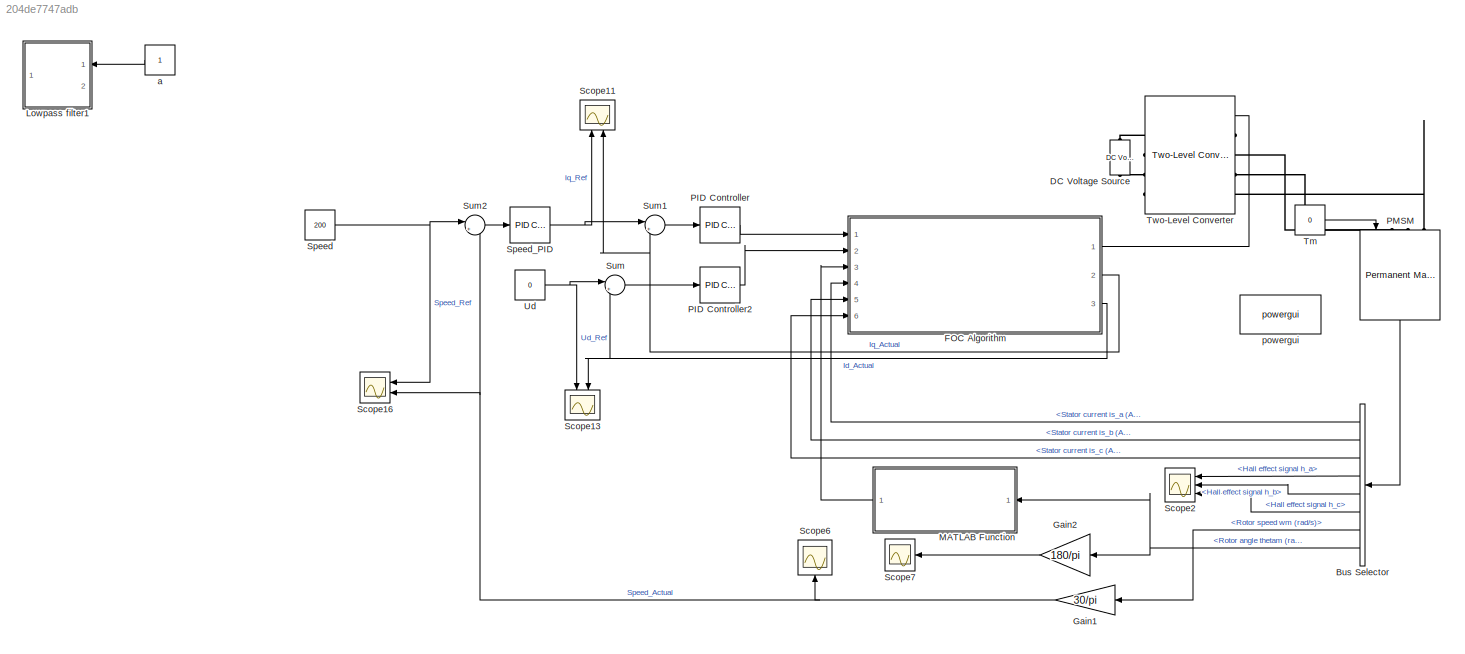
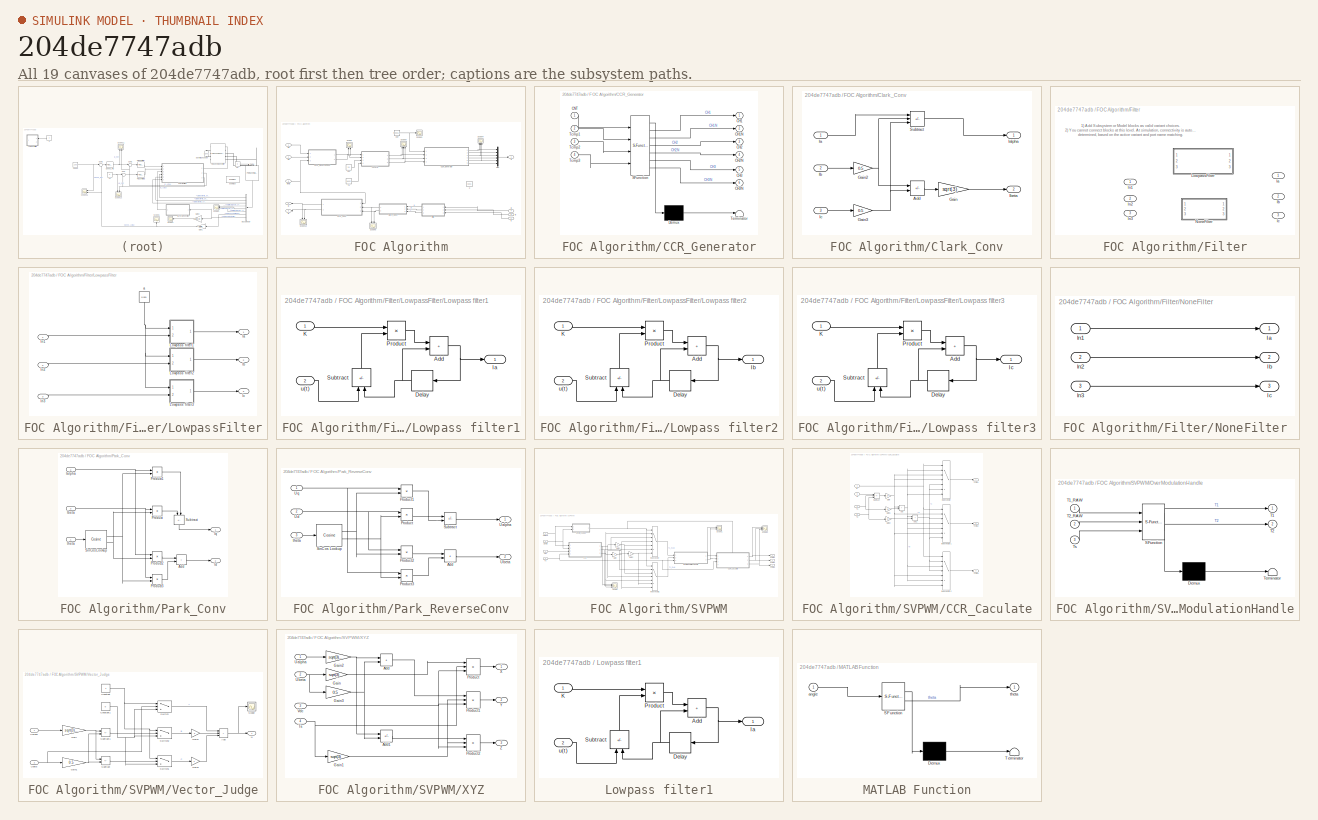
[diagram: thumbnail index - all 19 canvases of the model, root first then tree order]
MODEL slx_204de7747adb
KIND model
CONFIG AbsTol = auto
CONFIG EnableMultiTasking = off
CONFIG FixedStep = 0.00001
CONFIG MaxStep = auto
CONFIG MinStep = auto
CONFIG RelTol = 1e-3
CONFIG SampleTimeConstraint = Unconstrained
CONFIG SolverName = FixedStepDiscrete
CONFIG StartTime = 0.0
CONFIG StopTime = 1
WORKSPACE source: mxarray member
WORKSPACE K = 0
BLOCK [BusSelector] Bus Selector
  NameLocation = top
  OutputSignals = Stator current is_a (A),Stator current is_b (A),Stator current is_c (A),Hall effect signal h_a,Hall effect signal h_b,Hall effect signal h_c,Rotor speed wm (rad/s),Rotor angle thetam (rad)
  Ports = [1, 8]
BLOCK [Reference] DC Voltage Source  REF=spsDCVoltageSourceLib/DC Voltage Source
  NameLocation = top
  Ports = [0, 0, 0, 0, 0, 1, 1]
  SourceBlock = spsDCVoltageSourceLib/DC Voltage Source
  SourceProductBaseCode = PS
  SourceType = DC Voltage Source
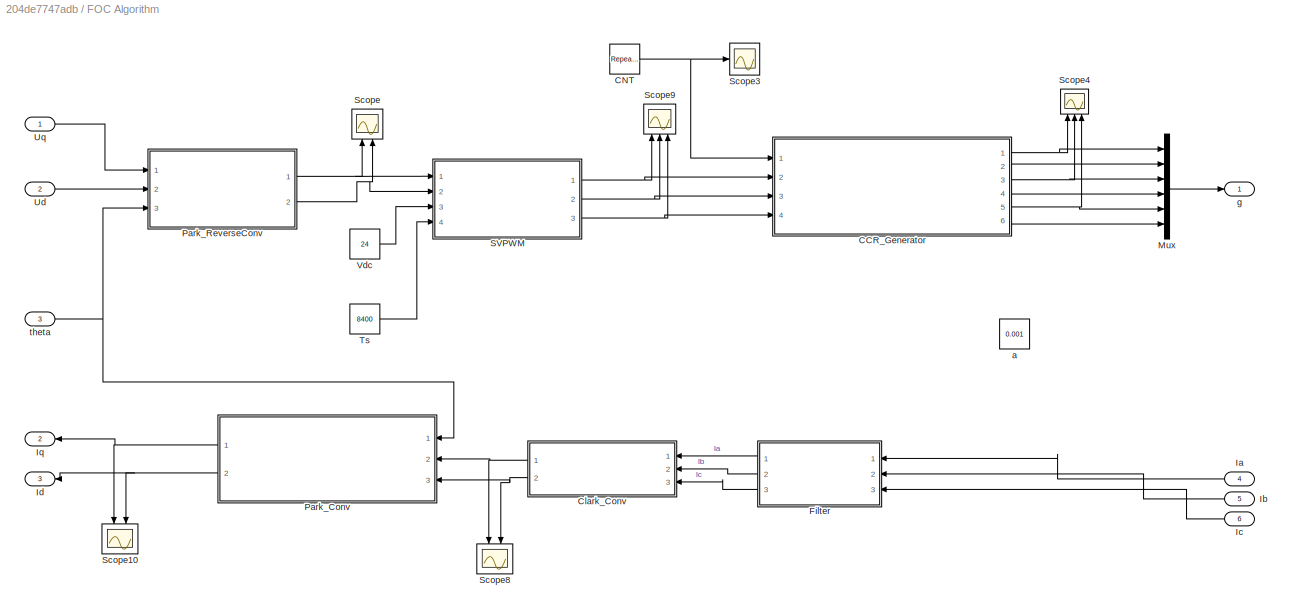
BLOCK [SubSystem] FOC Algorithm
  Ports = [6, 3]
  RequestExecContextInheritance = off
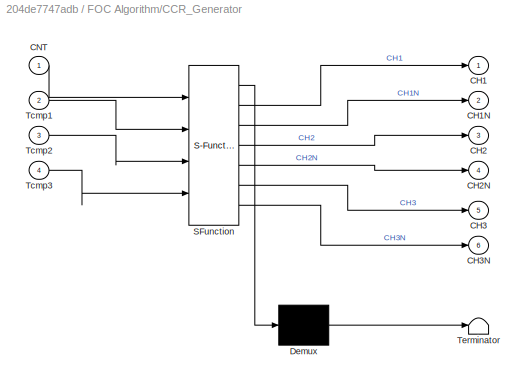
BLOCK [SubSystem] FOC Algorithm/CCR_Generator
  ErrorFcn = Stateflow.Translate.translate
  PermitHierarchicalResolution = ExplicitOnly
  Ports = [4, 6]
  RequestExecContextInheritance = off
  SFBlockType = MATLAB Function
  TreatAsAtomicUnit = on
BLOCK [Demux] FOC Algorithm/CCR_Generator/ Demux 
  Outputs = 1
  Ports = [1, 1]
BLOCK [S-Function] FOC Algorithm/CCR_Generator/ SFunction 
  EnableBusSupport = on
  FunctionName = sf_sfun
  PortCounts = [4 7]
  Ports = [4, 7]
  SFcnIsStateOwnerBlock = off
  SFunctionDeploymentMode = off
  Tag = Stateflow S-Function 1
BLOCK [Terminator] FOC Algorithm/CCR_Generator/ Terminator 
BLOCK [Outport] FOC Algorithm/CCR_Generator/CH1
BLOCK [Outport] FOC Algorithm/CCR_Generator/CH1N
  Port = 2
BLOCK [Outport] FOC Algorithm/CCR_Generator/CH2
  Port = 3
BLOCK [Outport] FOC Algorithm/CCR_Generator/CH2N
  Port = 4
BLOCK [Outport] FOC Algorithm/CCR_Generator/CH3
  Port = 5
BLOCK [Outport] FOC Algorithm/CCR_Generator/CH3N
  Port = 6
BLOCK [Inport] FOC Algorithm/CCR_Generator/CNT
BLOCK [Inport] FOC Algorithm/CCR_Generator/Tcmp1
  Port = 2
BLOCK [Inport] FOC Algorithm/CCR_Generator/Tcmp2
  Port = 3
BLOCK [Inport] FOC Algorithm/CCR_Generator/Tcmp3
  Port = 4
BLOCK [Reference] FOC Algorithm/CNT  REF=simulink/Sources/Repeating
Sequence
  Ports = [0, 1]
  SourceBlock = simulink/Sources/Repeating\nSequence
  SourceProductBaseCode = SL
  SourceType = Repeating table
BLOCK [SubSystem] FOC Algorithm/Clark_Conv
  Ports = [3, 2]
  RequestExecContextInheritance = off
BLOCK [Sum] FOC Algorithm/Clark_Conv/Add
  IconShape = rectangular
  Inputs = +-
  Ports = [2, 1]
BLOCK [Gain] FOC Algorithm/Clark_Conv/Gain
  Gain = sqrt(3)
BLOCK [Gain] FOC Algorithm/Clark_Conv/Gain2
  Gain = 0.5
BLOCK [Gain] FOC Algorithm/Clark_Conv/Gain3
  Gain = 0.5
BLOCK [Inport] FOC Algorithm/Clark_Conv/Ia
BLOCK [Outport] FOC Algorithm/Clark_Conv/Ialpha
BLOCK [Inport] FOC Algorithm/Clark_Conv/Ib
  Port = 2
BLOCK [Outport] FOC Algorithm/Clark_Conv/Ibeta
  Port = 2
BLOCK [Inport] FOC Algorithm/Clark_Conv/Ic
  Port = 3
BLOCK [Sum] FOC Algorithm/Clark_Conv/Subtract
  IconShape = rectangular
  Inputs = +--
  Ports = [3, 1]
BLOCK [SubSystem] FOC Algorithm/Filter
  Ports = [3, 3]
  RequestExecContextInheritance = off
  Variant = on
BLOCK [Outport] FOC Algorithm/Filter/Ia
BLOCK [Outport] FOC Algorithm/Filter/Ib
  Port = 2
BLOCK [Outport] FOC Algorithm/Filter/Ic
  Port = 3
BLOCK [SubSystem] FOC Algorithm/Filter/LowpassFilter
  Ports = [3, 3]
  RequestExecContextInheritance = off
  VariantControl = K==1
BLOCK [Outport] FOC Algorithm/Filter/LowpassFilter/Ia
BLOCK [Outport] FOC Algorithm/Filter/LowpassFilter/Ib
  Port = 2
BLOCK [Outport] FOC Algorithm/Filter/LowpassFilter/Ic
  Port = 3
BLOCK [SubSystem] FOC Algorithm/Filter/LowpassFilter/Lowpass filter1
  Ports = [2, 1]
  RequestExecContextInheritance = off
BLOCK [Sum] FOC Algorithm/Filter/LowpassFilter/Lowpass filter1/Add
  IconShape = rectangular
  Ports = [2, 1]
BLOCK [Delay] FOC Algorithm/Filter/LowpassFilter/Lowpass filter1/Delay
  DelayLength = 1
  InputPortMap = u0
  Ports = [1, 1]
BLOCK [Outport] FOC Algorithm/Filter/LowpassFilter/Lowpass filter1/Ia
BLOCK [Inport] FOC Algorithm/Filter/LowpassFilter/Lowpass filter1/K
BLOCK [Product] FOC Algorithm/Filter/LowpassFilter/Lowpass filter1/Product
  Ports = [2, 1]
BLOCK [Sum] FOC Algorithm/Filter/LowpassFilter/Lowpass filter1/Subtract
  IconShape = rectangular
  Inputs = +-
  NameLocation = left
  Ports = [2, 1]
BLOCK [Inport] FOC Algorithm/Filter/LowpassFilter/Lowpass filter1/u(t)
  Port = 2
BLOCK [SubSystem] FOC Algorithm/Filter/LowpassFilter/Lowpass filter2
  Ports = [2, 1]
  RequestExecContextInheritance = off
BLOCK [Sum] FOC Algorithm/Filter/LowpassFilter/Lowpass filter2/Add
  IconShape = rectangular
  Ports = [2, 1]
BLOCK [Delay] FOC Algorithm/Filter/LowpassFilter/Lowpass filter2/Delay
  DelayLength = 1
  InputPortMap = u0
  Ports = [1, 1]
BLOCK [Outport] FOC Algorithm/Filter/LowpassFilter/Lowpass filter2/Ib
BLOCK [Inport] FOC Algorithm/Filter/LowpassFilter/Lowpass filter2/K
BLOCK [Product] FOC Algorithm/Filter/LowpassFilter/Lowpass filter2/Product
  Ports = [2, 1]
BLOCK [Sum] FOC Algorithm/Filter/LowpassFilter/Lowpass filter2/Subtract
  IconShape = rectangular
  Inputs = +-
  NameLocation = left
  Ports = [2, 1]
BLOCK [Inport] FOC Algorithm/Filter/LowpassFilter/Lowpass filter2/u(t)
  Port = 2
BLOCK [SubSystem] FOC Algorithm/Filter/LowpassFilter/Lowpass filter3
  Ports = [2, 1]
  RequestExecContextInheritance = off
BLOCK [Sum] FOC Algorithm/Filter/LowpassFilter/Lowpass filter3/Add
  IconShape = rectangular
  Ports = [2, 1]
BLOCK [Delay] FOC Algorithm/Filter/LowpassFilter/Lowpass filter3/Delay
  DelayLength = 1
  InputPortMap = u0
  Ports = [1, 1]
BLOCK [Outport] FOC Algorithm/Filter/LowpassFilter/Lowpass filter3/Ic
BLOCK [Inport] FOC Algorithm/Filter/LowpassFilter/Lowpass filter3/K
BLOCK [Product] FOC Algorithm/Filter/LowpassFilter/Lowpass filter3/Product
  Ports = [2, 1]
BLOCK [Sum] FOC Algorithm/Filter/LowpassFilter/Lowpass filter3/Subtract
  IconShape = rectangular
  Inputs = +-
  NameLocation = left
  Ports = [2, 1]
BLOCK [Inport] FOC Algorithm/Filter/LowpassFilter/Lowpass filter3/u(t)
  Port = 2
BLOCK [Constant] FOC Algorithm/Filter/LowpassFilter/a
  NameLocation = left
  Value = 0.001
BLOCK [Inport] FOC Algorithm/Filter/LowpassFilter/ln1
BLOCK [Inport] FOC Algorithm/Filter/LowpassFilter/ln2
  Port = 2
BLOCK [Inport] FOC Algorithm/Filter/LowpassFilter/ln3
  Port = 3
BLOCK [SubSystem] FOC Algorithm/Filter/NoneFilter
  Ports = [3, 3]
  RequestExecContextInheritance = off
  VariantControl = K==0
BLOCK [Outport] FOC Algorithm/Filter/NoneFilter/Ia
BLOCK [Outport] FOC Algorithm/Filter/NoneFilter/Ib
  Port = 2
BLOCK [Outport] FOC Algorithm/Filter/NoneFilter/Ic
  Port = 3
BLOCK [Inport] FOC Algorithm/Filter/NoneFilter/ln1
BLOCK [Inport] FOC Algorithm/Filter/NoneFilter/ln2
  Port = 2
BLOCK [Inport] FOC Algorithm/Filter/NoneFilter/ln3
  Port = 3
BLOCK [Inport] FOC Algorithm/Filter/ln1
BLOCK [Inport] FOC Algorithm/Filter/ln2
  Port = 2
BLOCK [Inport] FOC Algorithm/Filter/ln3
  Port = 3
BLOCK [Inport] FOC Algorithm/Ia
  Port = 4
BLOCK [Inport] FOC Algorithm/Ib
  Port = 5
BLOCK [Inport] FOC Algorithm/Ic
  Port = 6
BLOCK [Outport] FOC Algorithm/Id
  Port = 3
BLOCK [Outport] FOC Algorithm/Iq
  Port = 2
BLOCK [Mux] FOC Algorithm/Mux
  DisplayOption = bar
  Inputs = 6
  Ports = [6, 1]
BLOCK [SubSystem] FOC Algorithm/Park_Conv
  Ports = [3, 2]
  RequestExecContextInheritance = off
BLOCK [Sum] FOC Algorithm/Park_Conv/Add
  IconShape = rectangular
  Ports = [2, 1]
BLOCK [Inport] FOC Algorithm/Park_Conv/Ialpha
  Port = 2
BLOCK [Inport] FOC Algorithm/Park_Conv/Ibeta
  Port = 3
BLOCK [Outport] FOC Algorithm/Park_Conv/Id
  Port = 2
BLOCK [Outport] FOC Algorithm/Park_Conv/Iq
BLOCK [Product] FOC Algorithm/Park_Conv/Product
  Ports = [2, 1]
BLOCK [Product] FOC Algorithm/Park_Conv/Product1
  Ports = [2, 1]
BLOCK [Product] FOC Algorithm/Park_Conv/Product2
  Ports = [2, 1]
BLOCK [Product] FOC Algorithm/Park_Conv/Product3
  Ports = [2, 1]
BLOCK [Reference] FOC Algorithm/Park_Conv/SinCos Lookup  REF=simulink/Lookup
Tables/Cosine
  Ports = [1, 2]
  SourceBlock = simulink/Lookup\nTables/Cosine
  SourceProductBaseCode = SL
  SourceType = Sine and Cosine
BLOCK [Sum] FOC Algorithm/Park_Conv/Subtract
  IconShape = rectangular
  Inputs = +-
  NameLocation = right
  Ports = [2, 1]
BLOCK [Inport] FOC Algorithm/Park_Conv/theta
BLOCK [SubSystem] FOC Algorithm/Park_ReverseConv
  Ports = [3, 2]
  RequestExecContextInheritance = off
BLOCK [Sum] FOC Algorithm/Park_ReverseConv/Add
  IconShape = rectangular
  Ports = [2, 1]
BLOCK [Product] FOC Algorithm/Park_ReverseConv/Product
  Ports = [2, 1]
BLOCK [Product] FOC Algorithm/Park_ReverseConv/Product1
  Ports = [2, 1]
BLOCK [Product] FOC Algorithm/Park_ReverseConv/Product2
  Ports = [2, 1]
BLOCK [Product] FOC Algorithm/Park_ReverseConv/Product3
  Ports = [2, 1]
BLOCK [Reference] FOC Algorithm/Park_ReverseConv/SinCos Lookup  REF=simulink/Lookup
Tables/Cosine
  Ports = [1, 2]
  SourceBlock = simulink/Lookup\nTables/Cosine
  SourceProductBaseCode = SL
  SourceType = Sine and Cosine
BLOCK [Sum] FOC Algorithm/Park_ReverseConv/Subtract
  IconShape = rectangular
  Inputs = +-
  Ports = [2, 1]
BLOCK [Outport] FOC Algorithm/Park_ReverseConv/Ualpha
BLOCK [Outport] FOC Algorithm/Park_ReverseConv/Ubeta
  Port = 2
BLOCK [Inport] FOC Algorithm/Park_ReverseConv/Ud
  Port = 2
BLOCK [Inport] FOC Algorithm/Park_ReverseConv/Uq
BLOCK [Inport] FOC Algorithm/Park_ReverseConv/theta
  Port = 3
BLOCK [SubSystem] FOC Algorithm/SVPWM
  Ports = [4, 3]
  RequestExecContextInheritance = off
BLOCK [SubSystem] FOC Algorithm/SVPWM/CCR_Caculate
  PortSchema = {"entries":[{"content":{"sides":[{"content":{"connectorIds":["In1","In2","In3"]},"type":"ConnectorPlacement.EquallySpacedRectSide","uuid":"41d89106-695f-4d7e-9c99-c52170b99868"},{"content":{"connectorIds":["Out1","Out2","Out3"],"side":"RIGHT"},"type":"ConnectorPlacement.EquallySpacedRectSide","uuid":"0fa1e6b9-7088-4c16-9dd3-c016449aae3e"},{"content":{"connectorIds":["In4"],"side":"TOP"},"type":"Co...<+271ch>
  Ports = [4, 3]
  RequestExecContextInheritance = off
BLOCK [Sum] FOC Algorithm/SVPWM/CCR_Caculate/Add
  IconShape = rectangular
  Ports = [2, 1]
BLOCK [Sum] FOC Algorithm/SVPWM/CCR_Caculate/Add1
  IconShape = rectangular
  Ports = [2, 1]
BLOCK [Gain] FOC Algorithm/SVPWM/CCR_Caculate/Gain
  Gain = 1/4
BLOCK [Gain] FOC Algorithm/SVPWM/CCR_Caculate/Gain1
  Gain = 1/2
BLOCK [Gain] FOC Algorithm/SVPWM/CCR_Caculate/Gain2
  Gain = 1/2
BLOCK [MultiPortSwitch] FOC Algorithm/SVPWM/CCR_Caculate/Index Vector
  InputSameDT = off
  Inputs = 6
  Ports = [7, 1]
  SaturateOnIntegerOverflow = off
BLOCK [MultiPortSwitch] FOC Algorithm/SVPWM/CCR_Caculate/Index Vector1
  InputSameDT = off
  Inputs = 6
  Ports = [7, 1]
  SaturateOnIntegerOverflow = off
BLOCK [MultiPortSwitch] FOC Algorithm/SVPWM/CCR_Caculate/Index Vector2
  InputSameDT = off
  Inputs = 6
  Ports = [7, 1]
  SaturateOnIntegerOverflow = off
BLOCK [Inport] FOC Algorithm/SVPWM/CCR_Caculate/N
  Port = 4
BLOCK [Sum] FOC Algorithm/SVPWM/CCR_Caculate/Subtract
  IconShape = rectangular
  Inputs = +--
  Ports = [3, 1]
BLOCK [Inport] FOC Algorithm/SVPWM/CCR_Caculate/T1
BLOCK [Inport] FOC Algorithm/SVPWM/CCR_Caculate/T2
  Port = 2
BLOCK [Outport] FOC Algorithm/SVPWM/CCR_Caculate/Tcmp1
BLOCK [Outport] FOC Algorithm/SVPWM/CCR_Caculate/Tcmp2
  Port = 2
BLOCK [Outport] FOC Algorithm/SVPWM/CCR_Caculate/Tcmp3
  Port = 3
BLOCK [Inport] FOC Algorithm/SVPWM/CCR_Caculate/Ts
  Port = 3
BLOCK [Gain] FOC Algorithm/SVPWM/Gain
  Gain = -1
BLOCK [Gain] FOC Algorithm/SVPWM/Gain1
  Gain = -1
BLOCK [Gain] FOC Algorithm/SVPWM/Gain2
  Gain = -1
BLOCK [MultiPortSwitch] FOC Algorithm/SVPWM/Index Vector
  InputSameDT = off
  Inputs = 6
  Ports = [7, 1]
  SaturateOnIntegerOverflow = off
BLOCK [MultiPortSwitch] FOC Algorithm/SVPWM/Index Vector1
  InputSameDT = off
  Inputs = 6
  Ports = [7, 1]
  SaturateOnIntegerOverflow = off
BLOCK [SubSystem] FOC Algorithm/SVPWM/OverModulationHandle
  ErrorFcn = Stateflow.Translate.translate
  PermitHierarchicalResolution = ExplicitOnly
  Ports = [3, 2]
  RequestExecContextInheritance = off
  SFBlockType = MATLAB Function
  TreatAsAtomicUnit = on
BLOCK [Demux] FOC Algorithm/SVPWM/OverModulationHandle/ Demux 
  Outputs = 1
  Ports = [1, 1]
BLOCK [S-Function] FOC Algorithm/SVPWM/OverModulationHandle/ SFunction 
  EnableBusSupport = on
  FunctionName = sf_sfun
  PortCounts = [3 3]
  Ports = [3, 3]
  SFcnIsStateOwnerBlock = off
  SFunctionDeploymentMode = off
  Tag = Stateflow S-Function 2
BLOCK [Terminator] FOC Algorithm/SVPWM/OverModulationHandle/ Terminator 
BLOCK [Outport] FOC Algorithm/SVPWM/OverModulationHandle/T1
BLOCK [Inport] FOC Algorithm/SVPWM/OverModulationHandle/T1_RAW
BLOCK [Outport] FOC Algorithm/SVPWM/OverModulationHandle/T2
  Port = 2
BLOCK [Inport] FOC Algorithm/SVPWM/OverModulationHandle/T2_RAW
  Port = 2
BLOCK [Inport] FOC Algorithm/SVPWM/OverModulationHandle/Ts
  Port = 3
BLOCK [Scope] FOC Algorithm/SVPWM/Scope
  Floating = off
  NumInputPorts = 3
  Ports = [3]
  ScopeSpecificationString = Simulink.scopes.TimeScopeBlockCfg('CurrentConfiguration', extmgr.ConfigurationSet(extmgr.Configuration('Core','General UI',true),extmgr.Configuration('Core','Source UI',true),extmgr.Configuration('Sources','WiredSimulink',true,'DataLoggingVariableName','ScopeData2'),extmgr.Configuration('Visuals','Time Domain',true,'SerializedDisplays',{struct('MinYLimReal','-10840.7399','MaxYLimReal','10882.04333...<+1438ch>
BLOCK [Scope] FOC Algorithm/SVPWM/Scope1
  Floating = off
  NumInputPorts = 2
  Ports = [2]
  ScopeSpecificationString = Simulink.scopes.TimeScopeBlockCfg('CurrentConfiguration', extmgr.ConfigurationSet(extmgr.Configuration('Core','General UI',true),extmgr.Configuration('Core','Source UI',true),extmgr.Configuration('Sources','WiredSimulink',true,'DataLoggingVariableName','ScopeData3'),extmgr.Configuration('Visuals','Time Domain',true,'SerializedDisplays',{struct('MinYLimReal','-881.09887','MaxYLimReal','7929.96151',...<+1456ch>
BLOCK [Scope] FOC Algorithm/SVPWM/Scope2
  Floating = off
  NumInputPorts = 3
  Ports = [3]
  ScopeSpecificationString = Simulink.scopes.TimeScopeBlockCfg('CurrentConfiguration', extmgr.ConfigurationSet(extmgr.Configuration('Core','General UI',true),extmgr.Configuration('Core','Source UI',true),extmgr.Configuration('Sources','WiredSimulink',true,'DataLoggingVariableName','ScopeData4'),extmgr.Configuration('Visuals','Time Domain',true,'SerializedDisplays',{struct('MinYLimReal','205.56943','MaxYLimReal','3994.43057','...<+1456ch>
BLOCK [Outport] FOC Algorithm/SVPWM/Tcmp1
BLOCK [Outport] FOC Algorithm/SVPWM/Tcmp2
  Port = 2
BLOCK [Outport] FOC Algorithm/SVPWM/Tcmp3
  Port = 3
BLOCK [Inport] FOC Algorithm/SVPWM/Ts
  Port = 4
BLOCK [Inport] FOC Algorithm/SVPWM/Ualpha
BLOCK [Inport] FOC Algorithm/SVPWM/Ubeta
  Port = 2
BLOCK [Inport] FOC Algorithm/SVPWM/Vdc
  Port = 3
BLOCK [SubSystem] FOC Algorithm/SVPWM/Vector_Judge
  Ports = [2, 1]
  RequestExecContextInheritance = off
BLOCK [Sum] FOC Algorithm/SVPWM/Vector_Judge/Add
  IconShape = rectangular
  Inputs = +++
  Ports = [3, 1]
BLOCK [Constant] FOC Algorithm/SVPWM/Vector_Judge/Constant
BLOCK [Constant] FOC Algorithm/SVPWM/Vector_Judge/Constant1
  Value = 0
BLOCK [Gain] FOC Algorithm/SVPWM/Vector_Judge/Gain
  Gain = sqrt(3)/2
BLOCK [Gain] FOC Algorithm/SVPWM/Vector_Judge/Gain1
  Gain = 0.5
BLOCK [Gain] FOC Algorithm/SVPWM/Vector_Judge/Gain2
  Gain = 2
BLOCK [Gain] FOC Algorithm/SVPWM/Vector_Judge/Gain3
  Gain = 4
BLOCK [Outport] FOC Algorithm/SVPWM/Vector_Judge/N
BLOCK [Scope] FOC Algorithm/SVPWM/Vector_Judge/Scope
  Floating = off
  NumInputPorts = 1
  Ports = [1]
  ScopeSpecificationString = Simulink.scopes.TimeScopeBlockCfg('CurrentConfiguration', extmgr.ConfigurationSet(extmgr.Configuration('Core','General UI',true),extmgr.Configuration('Core','Source UI',true),extmgr.Configuration('Sources','WiredSimulink',true,'DataLoggingVariableName','ScopeData1'),extmgr.Configuration('Visuals','Time Domain',true,'SerializedDisplays',{struct('MinYLimReal','0.375','MaxYLimReal','6.625','YLabelRea...<+1371ch>
BLOCK [Sum] FOC Algorithm/SVPWM/Vector_Judge/Subtract
  IconShape = rectangular
  Inputs = --
  Ports = [2, 1]
BLOCK [Sum] FOC Algorithm/SVPWM/Vector_Judge/Subtract1
  IconShape = rectangular
  Inputs = +-
  Ports = [2, 1]
BLOCK [Switch] FOC Algorithm/SVPWM/Vector_Judge/Switch
  Criteria = u2 > Threshold
  InputSameDT = off
  SaturateOnIntegerOverflow = off
BLOCK [Switch] FOC Algorithm/SVPWM/Vector_Judge/Switch1
  Criteria = u2 > Threshold
  InputSameDT = off
  SaturateOnIntegerOverflow = off
BLOCK [Switch] FOC Algorithm/SVPWM/Vector_Judge/Switch2
  Criteria = u2 > Threshold
  InputSameDT = off
  SaturateOnIntegerOverflow = off
BLOCK [Inport] FOC Algorithm/SVPWM/Vector_Judge/Ualpha
BLOCK [Inport] FOC Algorithm/SVPWM/Vector_Judge/Ubeta
  Port = 2
BLOCK [SubSystem] FOC Algorithm/SVPWM/XYZ
  Ports = [4, 3]
  RequestExecContextInheritance = off
BLOCK [Sum] FOC Algorithm/SVPWM/XYZ/Add
  IconShape = rectangular
  Ports = [2, 1]
BLOCK [Sum] FOC Algorithm/SVPWM/XYZ/Add1
  IconShape = rectangular
  Inputs = -+
  Ports = [2, 1]
BLOCK [Gain] FOC Algorithm/SVPWM/XYZ/Gain
  Gain = sqrt(3)
BLOCK [Gain] FOC Algorithm/SVPWM/XYZ/Gain1
  Gain = sqrt(3)
BLOCK [Gain] FOC Algorithm/SVPWM/XYZ/Gain2
  Gain = sqrt(3)/2
BLOCK [Gain] FOC Algorithm/SVPWM/XYZ/Gain3
  Gain = 0.5
BLOCK [Product] FOC Algorithm/SVPWM/XYZ/Product
  Inputs = **/
  Ports = [3, 1]
BLOCK [Product] FOC Algorithm/SVPWM/XYZ/Product1
  Inputs = **/
  Ports = [3, 1]
BLOCK [Product] FOC Algorithm/SVPWM/XYZ/Product2
  Inputs = **/
  Ports = [3, 1]
BLOCK [Inport] FOC Algorithm/SVPWM/XYZ/Ts
  Port = 4
BLOCK [Inport] FOC Algorithm/SVPWM/XYZ/Ualpha
BLOCK [Inport] FOC Algorithm/SVPWM/XYZ/Ubeta
  Port = 2
BLOCK [Inport] FOC Algorithm/SVPWM/XYZ/Vdc
  Port = 3
BLOCK [Outport] FOC Algorithm/SVPWM/XYZ/X
BLOCK [Outport] FOC Algorithm/SVPWM/XYZ/Y
  Port = 2
BLOCK [Outport] FOC Algorithm/SVPWM/XYZ/Z
  Port = 3
BLOCK [Scope] FOC Algorithm/Scope
  Floating = off
  NameLocation = right
  NumInputPorts = 2
  Ports = [2]
  ScopeSpecificationString = Simulink.scopes.TimeScopeBlockCfg('CurrentConfiguration', extmgr.ConfigurationSet(extmgr.Configuration('Core','General UI',true,'FigureColor',[1 1 1]),extmgr.Configuration('Core','Source UI',true),extmgr.Configuration('Sources','WiredSimulink',true),extmgr.Configuration('Visuals','Time Domain',true,'SerializedDisplays',{struct('MinYLimReal','-12.5','MaxYLimReal','12.5','YLabelReal','电压(V)','MinYLi...<+1706ch>
BLOCK [Scope] FOC Algorithm/Scope10
  Floating = off
  NameLocation = right
  NumInputPorts = 2
  Ports = [2]
  ScopeSpecificationString = Simulink.scopes.TimeScopeBlockCfg('CurrentConfiguration', extmgr.ConfigurationSet(extmgr.Configuration('Core','General UI',true,'FigureColor',[1 1 1]),extmgr.Configuration('Core','Source UI',true),extmgr.Configuration('Sources','WiredSimulink',true,'DataLoggingVariableName','ScopeData1'),extmgr.Configuration('Visuals','Time Domain',true,'SerializedDisplays',{struct('MinYLimReal','-11.40983','MaxYL...<+1679ch>
BLOCK [Scope] FOC Algorithm/Scope3
  Commented = on
  Floating = off
  NumInputPorts = 1
  Ports = [1]
  ScopeSpecificationString = Simulink.scopes.TimeScopeBlockCfg('CurrentConfiguration', extmgr.ConfigurationSet(extmgr.Configuration('Core','General UI',true),extmgr.Configuration('Core','Source UI',true),extmgr.Configuration('Sources','WiredSimulink',true,'DataLoggingVariableName','ScopeData1'),extmgr.Configuration('Visuals','Time Domain',true,'SerializedDisplays',{struct('MinYLimReal','-525.00000','MaxYLimReal','4725.00000',...<+1453ch>
BLOCK [Scope] FOC Algorithm/Scope4
  Commented = on
  Floating = off
  NameLocation = right
  NumInputPorts = 3
  Ports = [3]
  ScopeSpecificationString = Simulink.scopes.TimeScopeBlockCfg('CurrentConfiguration', extmgr.ConfigurationSet(extmgr.Configuration('Core','General UI',true,'FigureColor',[1 1 1]),extmgr.Configuration('Core','Source UI',true),extmgr.Configuration('Sources','WiredSimulink',true,'DataLoggingVariableName','ScopeData2'),extmgr.Configuration('Visuals','Time Domain',true,'SerializedDisplays',{struct('MinYLimReal','-0.125','MaxYLimR...<+3275ch>
BLOCK [Scope] FOC Algorithm/Scope8
  Floating = off
  NameLocation = right
  NumInputPorts = 2
  Ports = [2]
  ScopeSpecificationString = Simulink.scopes.TimeScopeBlockCfg('CurrentConfiguration', extmgr.ConfigurationSet(extmgr.Configuration('Core','General UI',true,'FigureColor',[1 1 1]),extmgr.Configuration('Core','Source UI',true),extmgr.Configuration('Sources','WiredSimulink',true,'DataLoggingVariableName','ScopeData7'),extmgr.Configuration('Visuals','Time Domain',true,'SerializedDisplays',{struct('MinYLimReal','-23.13274','MaxYL...<+1782ch>
BLOCK [Scope] FOC Algorithm/Scope9
  Floating = off
  NameLocation = right
  NumInputPorts = 3
  Ports = [3]
  ScopeSpecificationString = Simulink.scopes.TimeScopeBlockCfg('CurrentConfiguration', extmgr.ConfigurationSet(extmgr.Configuration('Core','General UI',true,'FigureColor',[1 1 1]),extmgr.Configuration('Core','Source UI',true),extmgr.Configuration('Sources','WiredSimulink',true,'DataLoggingVariableName','ScopeData1'),extmgr.Configuration('Visuals','Time Domain',true,'SerializedDisplays',{struct('MinYLimReal','205.56943','MaxYL...<+1800ch>
BLOCK [Constant] FOC Algorithm/Ts
  Value = 8400
BLOCK [Inport] FOC Algorithm/Ud
  Port = 2
BLOCK [Inport] FOC Algorithm/Uq
BLOCK [Constant] FOC Algorithm/Vdc
  Value = 24
BLOCK [Constant] FOC Algorithm/a
  Value = 0.001
BLOCK [Outport] FOC Algorithm/g
BLOCK [Inport] FOC Algorithm/theta
  Port = 3
BLOCK [Gain] Gain1
  Gain = 30/pi
BLOCK [Gain] Gain2
  Gain = 180/pi
  NameLocation = top
BLOCK [SubSystem] Lowpass filter1
  Commented = on
  Ports = [2, 1]
  RequestExecContextInheritance = off
BLOCK [Sum] Lowpass filter1/Add
  IconShape = rectangular
  Ports = [2, 1]
BLOCK [Delay] Lowpass filter1/Delay
  DelayLength = 1
  InputPortMap = u0
  Ports = [1, 1]
BLOCK [Outport] Lowpass filter1/Ia
BLOCK [Inport] Lowpass filter1/K
BLOCK [Product] Lowpass filter1/Product
  Ports = [2, 1]
BLOCK [Sum] Lowpass filter1/Subtract
  IconShape = rectangular
  Inputs = +-
  NameLocation = left
  Ports = [2, 1]
BLOCK [Inport] Lowpass filter1/u(t)
  Port = 2
BLOCK [SubSystem] MATLAB Function
  ErrorFcn = Stateflow.Translate.translate
  PermitHierarchicalResolution = ExplicitOnly
  Ports = [1, 1]
  RequestExecContextInheritance = off
  SFBlockType = MATLAB Function
  TreatAsAtomicUnit = on
BLOCK [Demux] MATLAB Function/ Demux 
  Outputs = 1
  Ports = [1, 1]
BLOCK [S-Function] MATLAB Function/ SFunction 
  EnableBusSupport = on
  FunctionName = sf_sfun
  PortCounts = [1 2]
  Ports = [1, 2]
  SFcnIsStateOwnerBlock = off
  SFunctionDeploymentMode = off
  Tag = Stateflow S-Function 4
BLOCK [Terminator] MATLAB Function/ Terminator 
BLOCK [Inport] MATLAB Function/angle
BLOCK [Outport] MATLAB Function/theta
BLOCK [Reference] PID Controller  REF=slpidlib/PID Controller
  Ports = [1, 1]
  SourceBlock = slpidlib/PID Controller
  SourceProductBaseCode = SL
  SourceType = PID 1dof
BLOCK [Reference] PID Controller2  REF=slpidlib/PID Controller
  Ports = [1, 1]
  SourceBlock = slpidlib/PID Controller
  SourceProductBaseCode = SL
  SourceType = PID 1dof
BLOCK [Reference] PMSM  REF=spsPermanentMagnetSynchronousMachineLib/Permanent Magnet
Synchronous Machine
  NameLocation = left
  Ports = [1, 1, 0, 0, 0, 3]
  SourceBlock = spsPermanentMagnetSynchronousMachineLib/Permanent Magnet\nSynchronous Machine
  SourceProductBaseCode = PS
  SourceType = Permanent Magnet Synchronous Machine
BLOCK [Scope] Scope11
  Floating = off
  NameLocation = right
  NumInputPorts = 2
  Ports = [2]
  ScopeSpecificationString = Simulink.scopes.TimeScopeBlockCfg('CurrentConfiguration', extmgr.ConfigurationSet(extmgr.Configuration('Core','General UI',true),extmgr.Configuration('Core','Source UI',true),extmgr.Configuration('Sources','WiredSimulink',true,'DataLoggingVariableName','ScopeData2'),extmgr.Configuration('Visuals','Time Domain',true,'SerializedDisplays',{struct('MinYLimReal','-50','MaxYLimReal','174.18094','YLabelR...<+1443ch>
BLOCK [Scope] Scope13
  Floating = off
  NameLocation = left
  NumInputPorts = 2
  Ports = [2]
  ScopeSpecificationString = Simulink.scopes.TimeScopeBlockCfg('CurrentConfiguration', extmgr.ConfigurationSet(extmgr.Configuration('Core','General UI',true),extmgr.Configuration('Core','Source UI',true),extmgr.Configuration('Sources','WiredSimulink',true,'DataLoggingVariableName','ScopeData4'),extmgr.Configuration('Visuals','Time Domain',true,'SerializedDisplays',{struct('MinYLimReal','-82.31243','MaxYLimReal','47.11054','YL...<+1451ch>
BLOCK [Scope] Scope16
  Floating = off
  NameLocation = top
  NumInputPorts = 2
  Ports = [2]
  ScopeSpecificationString = Simulink.scopes.TimeScopeBlockCfg('CurrentConfiguration', extmgr.ConfigurationSet(extmgr.Configuration('Core','General UI',true,'FigureColor',[1 1 1]),extmgr.Configuration('Core','Source UI',true),extmgr.Configuration('Sources','WiredSimulink',true,'DataLoggingVariableName','ScopeData7'),extmgr.Configuration('Visuals','Time Domain',true,'SerializedDisplays',{struct('MinYLimReal','-36.44311','MaxYL...<+1822ch>
BLOCK [Scope] Scope2
  Commented = on
  Floating = off
  NumInputPorts = 3
  Ports = [3]
  ScopeSpecificationString = Simulink.scopes.TimeScopeBlockCfg('CurrentConfiguration', extmgr.ConfigurationSet(extmgr.Configuration('Core','General UI',true),extmgr.Configuration('Core','Source UI',true),extmgr.Configuration('Sources','WiredSimulink',true,'DataLoggingVariableName','ScopeData3'),extmgr.Configuration('Visuals','Time Domain',true,'SerializedDisplays',{struct('MinYLimReal','-0.125','MaxYLimReal','1.125','YLabelRe...<+2802ch>
BLOCK [Scope] Scope6
  Floating = off
  NameLocation = left
  NumInputPorts = 1
  Ports = [1]
  ScopeSpecificationString = Simulink.scopes.TimeScopeBlockCfg('CurrentConfiguration', extmgr.ConfigurationSet(extmgr.Configuration('Core','General UI',true,'FigureColor',[1 1 1]),extmgr.Configuration('Core','Source UI',true),extmgr.Configuration('Sources','WiredSimulink',true,'DataLoggingVariableName','ScopeData5'),extmgr.Configuration('Visuals','Time Domain',true,'SerializedDisplays',{struct('MinYLimReal','-27.77131','MaxYL...<+1917ch>
BLOCK [Scope] Scope7
  Floating = off
  NameLocation = top
  NumInputPorts = 1
  Ports = [1]
  ScopeSpecificationString = Simulink.scopes.TimeScopeBlockCfg('CurrentConfiguration', extmgr.ConfigurationSet(extmgr.Configuration('Core','General UI',true),extmgr.Configuration('Core','Source UI',true),extmgr.Configuration('Sources','WiredSimulink',true,'DataLoggingVariableName','ScopeData6'),extmgr.Configuration('Visuals','Time Domain',true,'SerializedDisplays',{struct('MinYLimReal','-148.35154','MaxYLimReal','1335.16386',...<+1455ch>
BLOCK [Constant] Speed
  Value = 200
BLOCK [Reference] Speed_PID  REF=slpidlib/PID Controller
  Ports = [1, 1]
  SourceBlock = slpidlib/PID Controller
  SourceProductBaseCode = SL
  SourceType = PID 1dof
BLOCK [Sum] Sum
  Inputs = |+-
  Ports = [2, 1]
BLOCK [Sum] Sum1
  Inputs = |+-
  Ports = [2, 1]
BLOCK [Sum] Sum2
  Inputs = |+-
  Ports = [2, 1]
BLOCK [Constant] Tm
  Value = 0
BLOCK [Reference] Two-Level Converter  REF=spsTwoLevelConverterLib/Two-Level Converter
  NameLocation = top
  Ports = [2, 0, 0, 0, 0, 3, 2]
  SourceBlock = spsTwoLevelConverterLib/Two-Level Converter
  SourceProductBaseCode = PS
  SourceType = Two-Level Converter
BLOCK [Constant] Ud
  Value = 0
BLOCK [Constant] a
  Commented = on
BLOCK [Reference] powergui  REF=spspowerguiLib/powergui
  Ports = []
  Priority = 1
  SourceBlock = spspowerguiLib/powergui
  SourceProductBaseCode = PS
  SourceType = PSB option menu block
ANNOTATION FOC Algorithm/Filter: 1) Add Subsystem or Model blocks as valid variant choices. 2) You cannot connect blocks at this level. At simulation, connectivity is automatically determined, based on the active variant and port name matching.
LINE Bus Selector:1 -> FOC Algorithm:4
LINE Bus Selector:2 -> FOC Algorithm:5
LINE Bus Selector:3 -> FOC Algorithm:6
LINE Bus Selector:4 -> Scope2:1
LINE Bus Selector:5 -> Scope2:2
LINE Bus Selector:6 -> Scope2:3
LINE Bus Selector:7 -> Gain1:1
NET Bus Selector:8 -> Gain2:1, MATLAB Function:1
NET FOC Algorithm/CCR_Generator:1 -> FOC Algorithm/Mux:1, FOC Algorithm/Scope4:1
LINE FOC Algorithm/CCR_Generator:2 -> FOC Algorithm/Mux:2
NET FOC Algorithm/CCR_Generator:3 -> FOC Algorithm/Mux:3, FOC Algorithm/Scope4:2
LINE FOC Algorithm/CCR_Generator:4 -> FOC Algorithm/Mux:4
NET FOC Algorithm/CCR_Generator:5 -> FOC Algorithm/Mux:5, FOC Algorithm/Scope4:3
LINE FOC Algorithm/CCR_Generator:6 -> FOC Algorithm/Mux:6
NET FOC Algorithm/CNT:1 -> FOC Algorithm/CCR_Generator:1, FOC Algorithm/Scope3:1
LINE FOC Algorithm/Clark_Conv/Add:1 -> FOC Algorithm/Clark_Conv/Gain:1
NET FOC Algorithm/Clark_Conv/Gain2:1 -> FOC Algorithm/Clark_Conv/Add:1, FOC Algorithm/Clark_Conv/Subtract:2
NET FOC Algorithm/Clark_Conv/Gain3:1 -> FOC Algorithm/Clark_Conv/Add:2, FOC Algorithm/Clark_Conv/Subtract:3
LINE FOC Algorithm/Clark_Conv/Gain:1 -> FOC Algorithm/Clark_Conv/Ibeta:1
LINE FOC Algorithm/Clark_Conv/Ia:1 -> FOC Algorithm/Clark_Conv/Subtract:1
LINE FOC Algorithm/Clark_Conv/Ib:1 -> FOC Algorithm/Clark_Conv/Gain2:1
LINE FOC Algorithm/Clark_Conv/Ic:1 -> FOC Algorithm/Clark_Conv/Gain3:1
LINE FOC Algorithm/Clark_Conv/Subtract:1 -> FOC Algorithm/Clark_Conv/Ialpha:1
NET FOC Algorithm/Clark_Conv:1 -> FOC Algorithm/Park_Conv:2, FOC Algorithm/Scope8:1
NET FOC Algorithm/Clark_Conv:2 -> FOC Algorithm/Park_Conv:3, FOC Algorithm/Scope8:2
NET FOC Algorithm/Filter/LowpassFilter/Lowpass filter1/Add:1 -> FOC Algorithm/Filter/LowpassFilter/Lowpass filter1/Delay:1, FOC Algorithm/Filter/LowpassFilter/Lowpass filter1/Ia:1
NET FOC Algorithm/Filter/LowpassFilter/Lowpass filter1/Delay:1 -> FOC Algorithm/Filter/LowpassFilter/Lowpass filter1/Add:2, FOC Algorithm/Filter/LowpassFilter/Lowpass filter1/Subtract:2
LINE FOC Algorithm/Filter/LowpassFilter/Lowpass filter1/K:1 -> FOC Algorithm/Filter/LowpassFilter/Lowpass filter1/Product:1
LINE FOC Algorithm/Filter/LowpassFilter/Lowpass filter1/Product:1 -> FOC Algorithm/Filter/LowpassFilter/Lowpass filter1/Add:1
LINE FOC Algorithm/Filter/LowpassFilter/Lowpass filter1/Subtract:1 -> FOC Algorithm/Filter/LowpassFilter/Lowpass filter1/Product:2
LINE FOC Algorithm/Filter/LowpassFilter/Lowpass filter1/u(t):1 -> FOC Algorithm/Filter/LowpassFilter/Lowpass filter1/Subtract:1
LINE FOC Algorithm/Filter/LowpassFilter/Lowpass filter1:1 -> FOC Algorithm/Filter/LowpassFilter/Ia:1
NET FOC Algorithm/Filter/LowpassFilter/Lowpass filter2/Add:1 -> FOC Algorithm/Filter/LowpassFilter/Lowpass filter2/Delay:1, FOC Algorithm/Filter/LowpassFilter/Lowpass filter2/Ib:1
NET FOC Algorithm/Filter/LowpassFilter/Lowpass filter2/Delay:1 -> FOC Algorithm/Filter/LowpassFilter/Lowpass filter2/Add:2, FOC Algorithm/Filter/LowpassFilter/Lowpass filter2/Subtract:2
LINE FOC Algorithm/Filter/LowpassFilter/Lowpass filter2/K:1 -> FOC Algorithm/Filter/LowpassFilter/Lowpass filter2/Product:1
LINE FOC Algorithm/Filter/LowpassFilter/Lowpass filter2/Product:1 -> FOC Algorithm/Filter/LowpassFilter/Lowpass filter2/Add:1
LINE FOC Algorithm/Filter/LowpassFilter/Lowpass filter2/Subtract:1 -> FOC Algorithm/Filter/LowpassFilter/Lowpass filter2/Product:2
LINE FOC Algorithm/Filter/LowpassFilter/Lowpass filter2/u(t):1 -> FOC Algorithm/Filter/LowpassFilter/Lowpass filter2/Subtract:1
LINE FOC Algorithm/Filter/LowpassFilter/Lowpass filter2:1 -> FOC Algorithm/Filter/LowpassFilter/Ib:1
NET FOC Algorithm/Filter/LowpassFilter/Lowpass filter3/Add:1 -> FOC Algorithm/Filter/LowpassFilter/Lowpass filter3/Delay:1, FOC Algorithm/Filter/LowpassFilter/Lowpass filter3/Ic:1
NET FOC Algorithm/Filter/LowpassFilter/Lowpass filter3/Delay:1 -> FOC Algorithm/Filter/LowpassFilter/Lowpass filter3/Add:2, FOC Algorithm/Filter/LowpassFilter/Lowpass filter3/Subtract:2
LINE FOC Algorithm/Filter/LowpassFilter/Lowpass filter3/K:1 -> FOC Algorithm/Filter/LowpassFilter/Lowpass filter3/Product:1
LINE FOC Algorithm/Filter/LowpassFilter/Lowpass filter3/Product:1 -> FOC Algorithm/Filter/LowpassFilter/Lowpass filter3/Add:1
LINE FOC Algorithm/Filter/LowpassFilter/Lowpass filter3/Subtract:1 -> FOC Algorithm/Filter/LowpassFilter/Lowpass filter3/Product:2
LINE FOC Algorithm/Filter/LowpassFilter/Lowpass filter3/u(t):1 -> FOC Algorithm/Filter/LowpassFilter/Lowpass filter3/Subtract:1
LINE FOC Algorithm/Filter/LowpassFilter/Lowpass filter3:1 -> FOC Algorithm/Filter/LowpassFilter/Ic:1
NET FOC Algorithm/Filter/LowpassFilter/a:1 -> FOC Algorithm/Filter/LowpassFilter/Lowpass filter1:1, FOC Algorithm/Filter/LowpassFilter/Lowpass filter2:1, FOC Algorithm/Filter/LowpassFilter/Lowpass filter3:1
LINE FOC Algorithm/Filter/LowpassFilter/ln1:1 -> FOC Algorithm/Filter/LowpassFilter/Lowpass filter1:2
LINE FOC Algorithm/Filter/LowpassFilter/ln2:1 -> FOC Algorithm/Filter/LowpassFilter/Lowpass filter2:2
LINE FOC Algorithm/Filter/LowpassFilter/ln3:1 -> FOC Algorithm/Filter/LowpassFilter/Lowpass filter3:2
LINE FOC Algorithm/Filter/NoneFilter/ln1:1 -> FOC Algorithm/Filter/NoneFilter/Ia:1
LINE FOC Algorithm/Filter/NoneFilter/ln2:1 -> FOC Algorithm/Filter/NoneFilter/Ib:1
LINE FOC Algorithm/Filter/NoneFilter/ln3:1 -> FOC Algorithm/Filter/NoneFilter/Ic:1
LINE FOC Algorithm/Filter:1 -> FOC Algorithm/Clark_Conv:1
LINE FOC Algorithm/Filter:2 -> FOC Algorithm/Clark_Conv:2
LINE FOC Algorithm/Filter:3 -> FOC Algorithm/Clark_Conv:3
LINE FOC Algorithm/Ia:1 -> FOC Algorithm/Filter:1
LINE FOC Algorithm/Ib:1 -> FOC Algorithm/Filter:2
LINE FOC Algorithm/Ic:1 -> FOC Algorithm/Filter:3
LINE FOC Algorithm/Mux:1 -> FOC Algorithm/g:1
LINE FOC Algorithm/Park_Conv/Add:1 -> FOC Algorithm/Park_Conv/Id:1
NET FOC Algorithm/Park_Conv/Ialpha:1 -> FOC Algorithm/Park_Conv/Product1:1, FOC Algorithm/Park_Conv/Product2:1
NET FOC Algorithm/Park_Conv/Ibeta:1 -> FOC Algorithm/Park_Conv/Product3:1, FOC Algorithm/Park_Conv/Product:1
LINE FOC Algorithm/Park_Conv/Product1:1 -> FOC Algorithm/Park_Conv/Subtract:2
LINE FOC Algorithm/Park_Conv/Product2:1 -> FOC Algorithm/Park_Conv/Add:1
LINE FOC Algorithm/Park_Conv/Product3:1 -> FOC Algorithm/Park_Conv/Add:2
LINE FOC Algorithm/Park_Conv/Product:1 -> FOC Algorithm/Park_Conv/Subtract:1
NET FOC Algorithm/Park_Conv/SinCos Lookup:1 -> FOC Algorithm/Park_Conv/Product1:2, FOC Algorithm/Park_Conv/Product3:2
NET FOC Algorithm/Park_Conv/SinCos Lookup:2 -> FOC Algorithm/Park_Conv/Product2:2, FOC Algorithm/Park_Conv/Product:2
LINE FOC Algorithm/Park_Conv/Subtract:1 -> FOC Algorithm/Park_Conv/Iq:1
LINE FOC Algorithm/Park_Conv/theta:1 -> FOC Algorithm/Park_Conv/SinCos Lookup:1
NET FOC Algorithm/Park_Conv:1 -> FOC Algorithm/Iq:1, FOC Algorithm/Scope10:1
NET FOC Algorithm/Park_Conv:2 -> FOC Algorithm/Id:1, FOC Algorithm/Scope10:2
LINE FOC Algorithm/Park_ReverseConv/Add:1 -> FOC Algorithm/Park_ReverseConv/Ubeta:1
LINE FOC Algorithm/Park_ReverseConv/Product1:1 -> FOC Algorithm/Park_ReverseConv/Subtract:2
LINE FOC Algorithm/Park_ReverseConv/Product2:1 -> FOC Algorithm/Park_ReverseConv/Add:1
LINE FOC Algorithm/Park_ReverseConv/Product3:1 -> FOC Algorithm/Park_ReverseConv/Add:2
LINE FOC Algorithm/Park_ReverseConv/Product:1 -> FOC Algorithm/Park_ReverseConv/Subtract:1
NET FOC Algorithm/Park_ReverseConv/SinCos Lookup:1 -> FOC Algorithm/Park_ReverseConv/Product1:2, FOC Algorithm/Park_ReverseConv/Product2:2
NET FOC Algorithm/Park_ReverseConv/SinCos Lookup:2 -> FOC Algorithm/Park_ReverseConv/Product3:2, FOC Algorithm/Park_ReverseConv/Product:2
LINE FOC Algorithm/Park_ReverseConv/Subtract:1 -> FOC Algorithm/Park_ReverseConv/Ualpha:1
NET FOC Algorithm/Park_ReverseConv/Ud:1 -> FOC Algorithm/Park_ReverseConv/Product2:1, FOC Algorithm/Park_ReverseConv/Product:1
NET FOC Algorithm/Park_ReverseConv/Uq:1 -> FOC Algorithm/Park_ReverseConv/Product1:1, FOC Algorithm/Park_ReverseConv/Product3:1
LINE FOC Algorithm/Park_ReverseConv/theta:1 -> FOC Algorithm/Park_ReverseConv/SinCos Lookup:1
NET FOC Algorithm/Park_ReverseConv:1 -> FOC Algorithm/SVPWM:1, FOC Algorithm/Scope:1
NET FOC Algorithm/Park_ReverseConv:2 -> FOC Algorithm/SVPWM:2, FOC Algorithm/Scope:2
NET FOC Algorithm/SVPWM/CCR_Caculate/Add1:1 -> FOC Algorithm/SVPWM/CCR_Caculate/Index Vector1:3, FOC Algorithm/SVPWM/CCR_Caculate/Index Vector1:7, FOC Algorithm/SVPWM/CCR_Caculate/Index Vector2:2, FOC Algorithm/SVPWM/CCR_Caculate/Index Vector2:4, FOC Algorithm/SVPWM/CCR_Caculate/Index Vector:5, FOC Algorithm/SVPWM/CCR_Caculate/Index Vector:6
NET FOC Algorithm/SVPWM/CCR_Caculate/Add:1 -> FOC Algorithm/SVPWM/CCR_Caculate/Add1:1, FOC Algorithm/SVPWM/CCR_Caculate/Index Vector1:4, FOC Algorithm/SVPWM/CCR_Caculate/Index Vector1:5, FOC Algorithm/SVPWM/CCR_Caculate/Index Vector2:3, FOC Algorithm/SVPWM/CCR_Caculate/Index Vector2:6, FOC Algorithm/SVPWM/CCR_Caculate/Index Vector:2, FOC Algorithm/SVPWM/CCR_Caculate/Index Vector:7
LINE FOC Algorithm/SVPWM/CCR_Caculate/Gain1:1 -> FOC Algorithm/SVPWM/CCR_Caculate/Add:2
LINE FOC Algorithm/SVPWM/CCR_Caculate/Gain2:1 -> FOC Algorithm/SVPWM/CCR_Caculate/Add1:2
NET FOC Algorithm/SVPWM/CCR_Caculate/Gain:1 -> FOC Algorithm/SVPWM/CCR_Caculate/Add:1, FOC Algorithm/SVPWM/CCR_Caculate/Index Vector1:2, FOC Algorithm/SVPWM/CCR_Caculate/Index Vector1:6, FOC Algorithm/SVPWM/CCR_Caculate/Index Vector2:5, FOC Algorithm/SVPWM/CCR_Caculate/Index Vector2:7, FOC Algorithm/SVPWM/CCR_Caculate/Index Vector:3, FOC Algorithm/SVPWM/CCR_Caculate/Index Vector:4
LINE FOC Algorithm/SVPWM/CCR_Caculate/Index Vector1:1 -> FOC Algorithm/SVPWM/CCR_Caculate/Tcmp2:1
LINE FOC Algorithm/SVPWM/CCR_Caculate/Index Vector2:1 -> FOC Algorithm/SVPWM/CCR_Caculate/Tcmp3:1
LINE FOC Algorithm/SVPWM/CCR_Caculate/Index Vector:1 -> FOC Algorithm/SVPWM/CCR_Caculate/Tcmp1:1
NET FOC Algorithm/SVPWM/CCR_Caculate/N:1 -> FOC Algorithm/SVPWM/CCR_Caculate/Index Vector1:1, FOC Algorithm/SVPWM/CCR_Caculate/Index Vector2:1, FOC Algorithm/SVPWM/CCR_Caculate/Index Vector:1
LINE FOC Algorithm/SVPWM/CCR_Caculate/Subtract:1 -> FOC Algorithm/SVPWM/CCR_Caculate/Gain:1
NET FOC Algorithm/SVPWM/CCR_Caculate/T1:1 -> FOC Algorithm/SVPWM/CCR_Caculate/Gain1:1, FOC Algorithm/SVPWM/CCR_Caculate/Subtract:2
NET FOC Algorithm/SVPWM/CCR_Caculate/T2:1 -> FOC Algorithm/SVPWM/CCR_Caculate/Gain2:1, FOC Algorithm/SVPWM/CCR_Caculate/Subtract:3
LINE FOC Algorithm/SVPWM/CCR_Caculate/Ts:1 -> FOC Algorithm/SVPWM/CCR_Caculate/Subtract:1
NET FOC Algorithm/SVPWM/CCR_Caculate:1 -> FOC Algorithm/SVPWM/Scope2:1, FOC Algorithm/SVPWM/Tcmp1:1
NET FOC Algorithm/SVPWM/CCR_Caculate:2 -> FOC Algorithm/SVPWM/Scope2:2, FOC Algorithm/SVPWM/Tcmp2:1
NET FOC Algorithm/SVPWM/CCR_Caculate:3 -> FOC Algorithm/SVPWM/Scope2:3, FOC Algorithm/SVPWM/Tcmp3:1
NET FOC Algorithm/SVPWM/Gain1:1 -> FOC Algorithm/SVPWM/Index Vector1:3, FOC Algorithm/SVPWM/Index Vector:5
NET FOC Algorithm/SVPWM/Gain2:1 -> FOC Algorithm/SVPWM/Index Vector1:6, FOC Algorithm/SVPWM/Index Vector:7
NET FOC Algorithm/SVPWM/Gain:1 -> FOC Algorithm/SVPWM/Index Vector1:7, FOC Algorithm/SVPWM/Index Vector:4
LINE FOC Algorithm/SVPWM/Index Vector1:1 -> FOC Algorithm/SVPWM/OverModulationHandle:2
LINE FOC Algorithm/SVPWM/Index Vector:1 -> FOC Algorithm/SVPWM/OverModulationHandle:1
NET FOC Algorithm/SVPWM/OverModulationHandle:1 -> FOC Algorithm/SVPWM/CCR_Caculate:1, FOC Algorithm/SVPWM/Scope1:1
NET FOC Algorithm/SVPWM/OverModulationHandle:2 -> FOC Algorithm/SVPWM/CCR_Caculate:2, FOC Algorithm/SVPWM/Scope1:2
NET FOC Algorithm/SVPWM/Ts:1 -> FOC Algorithm/SVPWM/CCR_Caculate:3, FOC Algorithm/SVPWM/OverModulationHandle:3, FOC Algorithm/SVPWM/XYZ:4
NET FOC Algorithm/SVPWM/Ualpha:1 -> FOC Algorithm/SVPWM/Vector_Judge:1, FOC Algorithm/SVPWM/XYZ:1
NET FOC Algorithm/SVPWM/Ubeta:1 -> FOC Algorithm/SVPWM/Vector_Judge:2, FOC Algorithm/SVPWM/XYZ:2
LINE FOC Algorithm/SVPWM/Vdc:1 -> FOC Algorithm/SVPWM/XYZ:3
NET FOC Algorithm/SVPWM/Vector_Judge/Add:1 -> FOC Algorithm/SVPWM/Vector_Judge/N:1, FOC Algorithm/SVPWM/Vector_Judge/Scope:1
NET FOC Algorithm/SVPWM/Vector_Judge/Constant1:1 -> FOC Algorithm/SVPWM/Vector_Judge/Switch1:3, FOC Algorithm/SVPWM/Vector_Judge/Switch2:3, FOC Algorithm/SVPWM/Vector_Judge/Switch:3
NET FOC Algorithm/SVPWM/Vector_Judge/Constant:1 -> FOC Algorithm/SVPWM/Vector_Judge/Switch1:1, FOC Algorithm/SVPWM/Vector_Judge/Switch2:1, FOC Algorithm/SVPWM/Vector_Judge/Switch:1
NET FOC Algorithm/SVPWM/Vector_Judge/Gain1:1 -> FOC Algorithm/SVPWM/Vector_Judge/Subtract1:2, FOC Algorithm/SVPWM/Vector_Judge/Subtract:2
LINE FOC Algorithm/SVPWM/Vector_Judge/Gain2:1 -> FOC Algorithm/SVPWM/Vector_Judge/Add:2
LINE FOC Algorithm/SVPWM/Vector_Judge/Gain3:1 -> FOC Algorithm/SVPWM/Vector_Judge/Add:3
NET FOC Algorithm/SVPWM/Vector_Judge/Gain:1 -> FOC Algorithm/SVPWM/Vector_Judge/Subtract1:1, FOC Algorithm/SVPWM/Vector_Judge/Subtract:1
LINE FOC Algorithm/SVPWM/Vector_Judge/Subtract1:1 -> FOC Algorithm/SVPWM/Vector_Judge/Switch2:2
LINE FOC Algorithm/SVPWM/Vector_Judge/Subtract:1 -> FOC Algorithm/SVPWM/Vector_Judge/Switch1:2
LINE FOC Algorithm/SVPWM/Vector_Judge/Switch1:1 -> FOC Algorithm/SVPWM/Vector_Judge/Gain3:1
LINE FOC Algorithm/SVPWM/Vector_Judge/Switch2:1 -> FOC Algorithm/SVPWM/Vector_Judge/Gain2:1
LINE FOC Algorithm/SVPWM/Vector_Judge/Switch:1 -> FOC Algorithm/SVPWM/Vector_Judge/Add:1
LINE FOC Algorithm/SVPWM/Vector_Judge/Ualpha:1 -> FOC Algorithm/SVPWM/Vector_Judge/Gain:1
NET FOC Algorithm/SVPWM/Vector_Judge/Ubeta:1 -> FOC Algorithm/SVPWM/Vector_Judge/Gain1:1, FOC Algorithm/SVPWM/Vector_Judge/Switch:2
NET FOC Algorithm/SVPWM/Vector_Judge:1 -> FOC Algorithm/SVPWM/CCR_Caculate:4, FOC Algorithm/SVPWM/Index Vector1:1, FOC Algorithm/SVPWM/Index Vector:1
LINE FOC Algorithm/SVPWM/XYZ/Add1:1 -> FOC Algorithm/SVPWM/XYZ/Product2:1
LINE FOC Algorithm/SVPWM/XYZ/Add:1 -> FOC Algorithm/SVPWM/XYZ/Product1:1
NET FOC Algorithm/SVPWM/XYZ/Gain1:1 -> FOC Algorithm/SVPWM/XYZ/Product1:2, FOC Algorithm/SVPWM/XYZ/Product2:2
NET FOC Algorithm/SVPWM/XYZ/Gain2:1 -> FOC Algorithm/SVPWM/XYZ/Add1:1, FOC Algorithm/SVPWM/XYZ/Add:1
NET FOC Algorithm/SVPWM/XYZ/Gain3:1 -> FOC Algorithm/SVPWM/XYZ/Add1:2, FOC Algorithm/SVPWM/XYZ/Add:2
LINE FOC Algorithm/SVPWM/XYZ/Gain:1 -> FOC Algorithm/SVPWM/XYZ/Product:1
LINE FOC Algorithm/SVPWM/XYZ/Product1:1 -> FOC Algorithm/SVPWM/XYZ/Y:1
LINE FOC Algorithm/SVPWM/XYZ/Product2:1 -> FOC Algorithm/SVPWM/XYZ/Z:1
LINE FOC Algorithm/SVPWM/XYZ/Product:1 -> FOC Algorithm/SVPWM/XYZ/X:1
NET FOC Algorithm/SVPWM/XYZ/Ts:1 -> FOC Algorithm/SVPWM/XYZ/Gain1:1, FOC Algorithm/SVPWM/XYZ/Product:2
LINE FOC Algorithm/SVPWM/XYZ/Ualpha:1 -> FOC Algorithm/SVPWM/XYZ/Gain2:1
NET FOC Algorithm/SVPWM/XYZ/Ubeta:1 -> FOC Algorithm/SVPWM/XYZ/Gain3:1, FOC Algorithm/SVPWM/XYZ/Gain:1
NET FOC Algorithm/SVPWM/XYZ/Vdc:1 -> FOC Algorithm/SVPWM/XYZ/Product1:3, FOC Algorithm/SVPWM/XYZ/Product2:3, FOC Algorithm/SVPWM/XYZ/Product:3
NET FOC Algorithm/SVPWM/XYZ:1 -> FOC Algorithm/SVPWM/Gain1:1, FOC Algorithm/SVPWM/Index Vector1:4, FOC Algorithm/SVPWM/Index Vector:6, FOC Algorithm/SVPWM/Scope:1
NET FOC Algorithm/SVPWM/XYZ:2 -> FOC Algorithm/SVPWM/Gain2:1, FOC Algorithm/SVPWM/Index Vector1:2, FOC Algorithm/SVPWM/Index Vector:3, FOC Algorithm/SVPWM/Scope:2
NET FOC Algorithm/SVPWM/XYZ:3 -> FOC Algorithm/SVPWM/Gain:1, FOC Algorithm/SVPWM/Index Vector1:5, FOC Algorithm/SVPWM/Index Vector:2, FOC Algorithm/SVPWM/Scope:3
NET FOC Algorithm/SVPWM:1 -> FOC Algorithm/CCR_Generator:2, FOC Algorithm/Scope9:1
NET FOC Algorithm/SVPWM:2 -> FOC Algorithm/CCR_Generator:3, FOC Algorithm/Scope9:2
NET FOC Algorithm/SVPWM:3 -> FOC Algorithm/CCR_Generator:4, FOC Algorithm/Scope9:3
LINE FOC Algorithm/Ts:1 -> FOC Algorithm/SVPWM:4
LINE FOC Algorithm/Ud:1 -> FOC Algorithm/Park_ReverseConv:2
LINE FOC Algorithm/Uq:1 -> FOC Algorithm/Park_ReverseConv:1
LINE FOC Algorithm/Vdc:1 -> FOC Algorithm/SVPWM:3
NET FOC Algorithm/theta:1 -> FOC Algorithm/Park_Conv:1, FOC Algorithm/Park_ReverseConv:3
LINE FOC Algorithm:1 -> Two-Level Converter:1
NET FOC Algorithm:2 -> Scope11:2, Sum1:2
NET FOC Algorithm:3 -> Scope13:2, Sum:2
NET Gain1:1 -> Scope16:2, Scope6:1, Sum2:2
LINE Gain2:1 -> Scope7:1
NET Lowpass filter1/Add:1 -> Lowpass filter1/Delay:1, Lowpass filter1/Ia:1
NET Lowpass filter1/Delay:1 -> Lowpass filter1/Add:2, Lowpass filter1/Subtract:2
LINE Lowpass filter1/K:1 -> Lowpass filter1/Product:1
LINE Lowpass filter1/Product:1 -> Lowpass filter1/Add:1
LINE Lowpass filter1/Subtract:1 -> Lowpass filter1/Product:2
LINE Lowpass filter1/u(t):1 -> Lowpass filter1/Subtract:1
LINE MATLAB Function:1 -> FOC Algorithm:3
LINE PID Controller2:1 -> FOC Algorithm:2
LINE PID Controller:1 -> FOC Algorithm:1
LINE PMSM:1 -> Bus Selector:1
NET Speed:1 -> Scope16:1, Sum2:1
NET Speed_PID:1 -> Scope11:1, Sum1:1
LINE Sum1:1 -> PID Controller:1
LINE Sum2:1 -> Speed_PID:1
LINE Sum:1 -> PID Controller2:1
LINE Tm:1 -> PMSM:1
NET Ud:1 -> Scope13:1, Sum:1
LINE a:1 -> Lowpass filter1:1
PLINE DC Voltage Source:LConn1 -- Two-Level Converter:RConn2
PLINE DC Voltage Source:RConn1 -- Two-Level Converter:RConn1
PLINE PMSM:LConn1 -- Two-Level Converter:LConn1
PLINE PMSM:LConn2 -- Two-Level Converter:LConn2
PLINE PMSM:LConn3 -- Two-Level Converter:LConn3
note: NET lines group one-source signal fan-out (src -> all destinations, sorted); 1:1 wires keep LINE
CHART FOC Algorithm/CCR_Generator states=1 transitions=1
  STATE_LABEL 'eML_blk_kernel()'
  STATE_LABEL 'SCRIPT:\nfunction[CH1,CH1N,CH2,CH2N,CH3,CH3N] = CCR_Generator(CNT,Tcmp1, Tcmp2, Tcmp3)\n\nif (CNT<Tcmp1)\n    CH1=0;\n    CH1N=1;\nelse\n    CH1=1;\n    CH1N=0;\nend\nif (CNT<Tcmp2)\n    CH2=0;\n    CH2N=1;\nelse\n    CH2=1;\n    CH2N=0;\nend\nif (CNT<Tcmp3)\n    CH3=0;\n    CH3N=1;\nelse\n    CH3=1;\n    CH3N=0;\nend\nend'
CHART FOC Algorithm/SVPWM/OverModulationHandle states=1 transitions=1
  STATE_LABEL 'eML_blk_kernel()'
  STATE_LABEL 'SCRIPT:\nfunction [T1,T2] = OverModulationHandle(T1_RAW, T2_RAW, Ts)\nif((T1_RAW+T2_RAW)>Ts)\n    T1=T1_RAW/(T1_RAW+T2_RAW)*Ts;\n    T2=T2_RAW/(T1_RAW+T2_RAW)*Ts;\nelse\n    T1=T1_RAW;\n    T2=T2_RAW;\nend\nend\n'
CHART MATLAB Function states=1 transitions=1
  STATE_LABEL 'eML_blk_kernel()'
  STATE_LABEL 'SCRIPT:\nfunction theta = Angle_Conv(angle)\n\nn=mod(angle,pi)/pi;\n\ntheta = n;\n\n'
CHART  states=0 transitions=0
CHART  states=0 transitions=0
CHART  states=0 transitions=0
